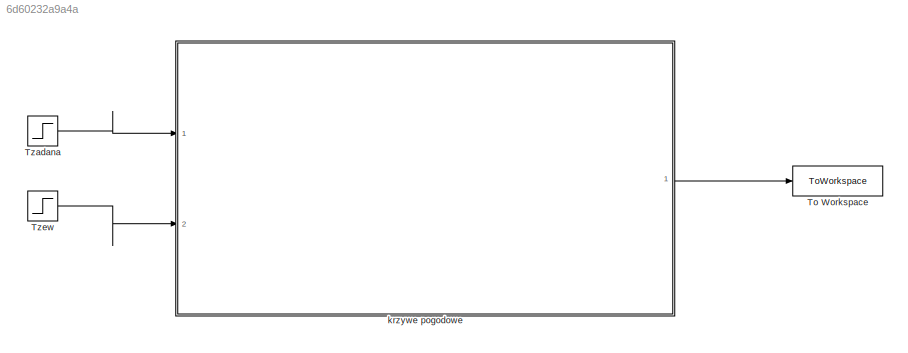
MODEL slx_6d60232a9a4a
KIND model
CONFIG AbsTol = auto
CONFIG EnableMultiTasking = off
CONFIG FixedStep = auto
CONFIG MaxStep = auto
CONFIG MinStep = auto
CONFIG RelTol = 1e-3
CONFIG SampleTimeConstraint = Unconstrained
CONFIG SolverName = VariableStepAuto
CONFIG StartTime = 0.0
CONFIG StopTime = 10.0
BLOCK [ToWorkspace] To Workspace
  FixptAsFi = on
  MaxDataPoints = inf
  Ports = [1]
  SampleTime = -1
  VariableName = qk_wyliczone
BLOCK [Step] Tzadana
  SampleTime = 0
BLOCK [Step] Tzew
  SampleTime = 0
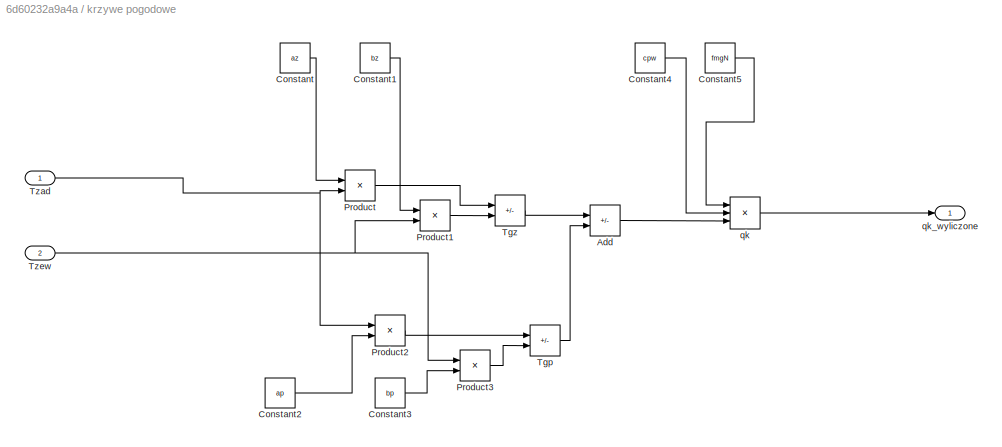
BLOCK [SubSystem] krzywe pogodowe
  Ports = [2, 1]
  RequestExecContextInheritance = off
BLOCK [Sum] krzywe pogodowe/Add
  IconShape = rectangular
  Inputs = +-
  Ports = [2, 1]
BLOCK [Constant] krzywe pogodowe/Constant
  Value = az
BLOCK [Constant] krzywe pogodowe/Constant1
  Value = bz
BLOCK [Constant] krzywe pogodowe/Constant2
  Value = ap
BLOCK [Constant] krzywe pogodowe/Constant3
  Value = bp
BLOCK [Constant] krzywe pogodowe/Constant4
  Value = cpw
BLOCK [Constant] krzywe pogodowe/Constant5
  Value = fmgN
BLOCK [Product] krzywe pogodowe/Product
  Ports = [2, 1]
BLOCK [Product] krzywe pogodowe/Product1
  Ports = [2, 1]
BLOCK [Product] krzywe pogodowe/Product2
  Ports = [2, 1]
BLOCK [Product] krzywe pogodowe/Product3
  Ports = [2, 1]
BLOCK [Sum] krzywe pogodowe/Tgp
  IconShape = rectangular
  Inputs = +-
  Ports = [2, 1]
BLOCK [Sum] krzywe pogodowe/Tgz
  IconShape = rectangular
  Inputs = +-
  Ports = [2, 1]
BLOCK [Inport] krzywe pogodowe/Tzad
BLOCK [Inport] krzywe pogodowe/Tzew
  Port = 2
BLOCK [Product] krzywe pogodowe/qk
  Inputs = 3
  Ports = [3, 1]
BLOCK [Outport] krzywe pogodowe/qk_wyliczone
LINE Tzadana:1 -> krzywe pogodowe:1
LINE Tzew:1 -> krzywe pogodowe:2
LINE krzywe pogodowe/Add:1 -> krzywe pogodowe/qk:3
LINE krzywe pogodowe/Constant1:1 -> krzywe pogodowe/Product1:1
LINE krzywe pogodowe/Constant2:1 -> krzywe pogodowe/Product2:2
LINE krzywe pogodowe/Constant3:1 -> krzywe pogodowe/Product3:2
LINE krzywe pogodowe/Constant4:1 -> krzywe pogodowe/qk:2
LINE krzywe pogodowe/Constant5:1 -> krzywe pogodowe/qk:1
LINE krzywe pogodowe/Constant:1 -> krzywe pogodowe/Product:1
LINE krzywe pogodowe/Product1:1 -> krzywe pogodowe/Tgz:2
LINE krzywe pogodowe/Product2:1 -> krzywe pogodowe/Tgp:1
LINE krzywe pogodowe/Product3:1 -> krzywe pogodowe/Tgp:2
LINE krzywe pogodowe/Product:1 -> krzywe pogodowe/Tgz:1
LINE krzywe pogodowe/Tgp:1 -> krzywe pogodowe/Add:2
LINE krzywe pogodowe/Tgz:1 -> krzywe pogodowe/Add:1
NET krzywe pogodowe/Tzad:1 -> krzywe pogodowe/Product2:1, krzywe pogodowe/Product:2
NET krzywe pogodowe/Tzew:1 -> krzywe pogodowe/Product1:2, krzywe pogodowe/Product3:1
LINE krzywe pogodowe/qk:1 -> krzywe pogodowe/qk_wyliczone:1
LINE krzywe pogodowe:1 -> To Workspace:1
note: NET lines group one-source signal fan-out (src -> all destinations, sorted); 1:1 wires keep LINE
